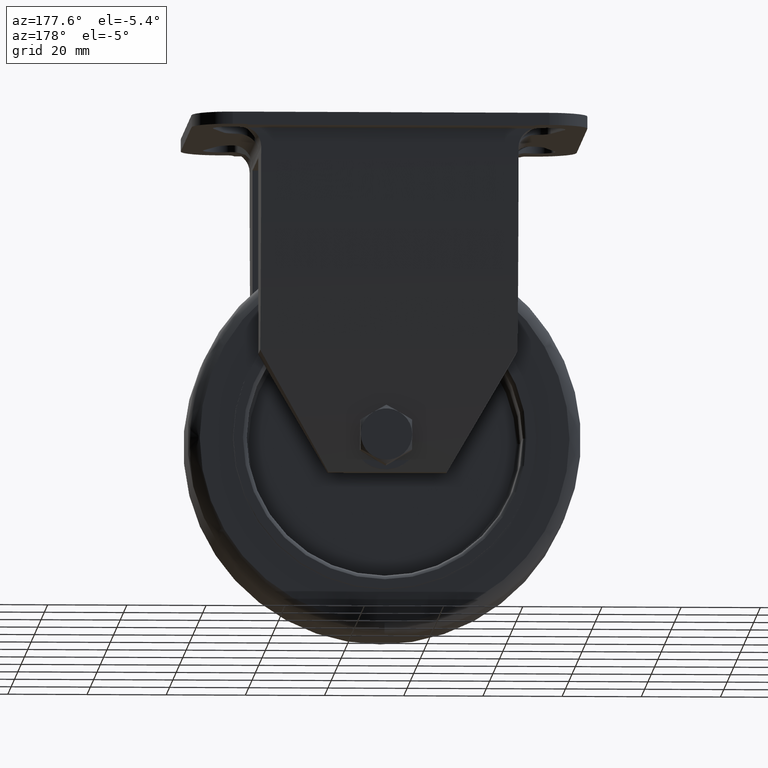
[diagram: clean part render]
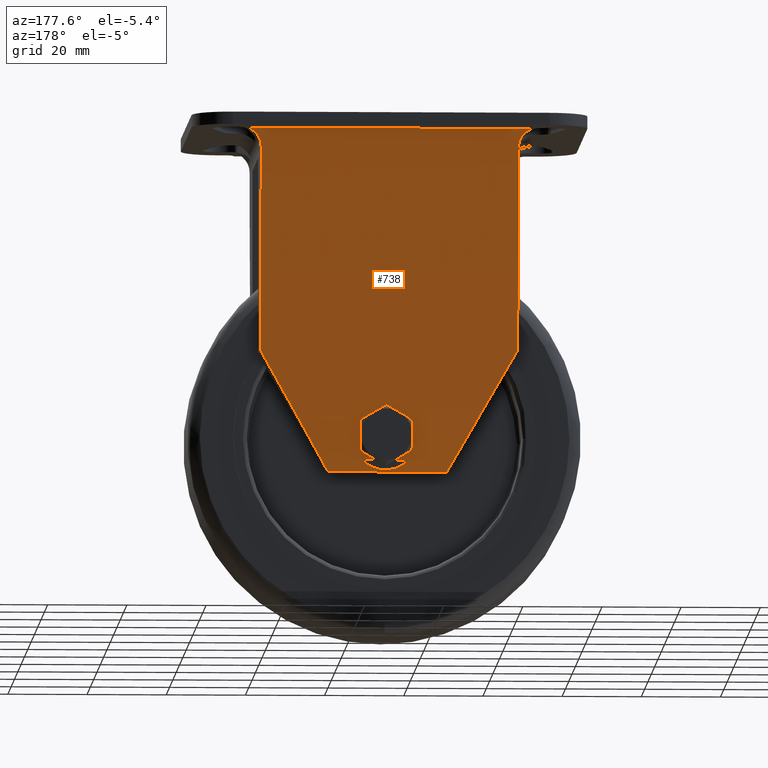
[diagram: same view with one face highlighted and labeled with its STEP entity id]
A machine part, auxiliary view. The second image highlights one B-rep face of the part: STEP entity #738.
In plain terms, the highlighted cylindrical surface (partial cylindrical patch) has radius 237.683 mm, axis along (-1, 0, 0).
Its self-contained STEP definition (entity closure, byte-faithful):
#17=CARTESIAN_POINT('',(-34.999999999854481,20.132727351359499,-89.074899551505951));
#18=VERTEX_POINT('',#17);
#25=CARTESIAN_POINT('',(-17.499999999927240,29.081470484884729,-59.074899551626004));
#26=VERTEX_POINT('',#25);
#27=CARTESIAN_POINT('',(13.295914884722153,-202.663913110853170,-6.281902606507163));
#28=DIRECTION('',(-0.863778900898468,3.085320E-017,0.503871025524028));
#29=DIRECTION('',(0.503871025524028,5.289120E-017,0.863778900898468));
#30=AXIS2_PLACEMENT_3D('',#27,#28,#29);
#31=ELLIPSE('',#30,275.166029494833940,237.682610521643000);
#32=EDGE_CURVE('',#26,#18,#31,.T.);
#230=CARTESIAN_POINT('',(-13.983269592892611,34.999991274860776,-3.299974283886515));
#231=VERTEX_POINT('',#230);
#284=CARTESIAN_POINT('',(-17.499999999927240,35.011934434363553,-8.074899551827913));
#285=VERTEX_POINT('',#284);
#292=CARTESIAN_POINT('',(-13.983269592892611,34.999991274860776,-3.299974283886515));
#293=CARTESIAN_POINT('',(-14.145652950079239,35.000624165982479,-3.350416601327199));
#294=CARTESIAN_POINT('',(-14.569965869013686,35.002539014016634,-3.506385639458133));
#295=CARTESIAN_POINT('',(-15.552061191752728,35.008388060178639,-4.026851848693697));
#296=CARTESIAN_POINT('',(-16.692195879615610,35.017709493622590,-5.129654845700317));
#297=CARTESIAN_POINT('',(-17.381654403310677,35.019980560630358,-6.675604846294847));
#298=CARTESIAN_POINT('',(-17.499999999927240,35.014871195865389,-7.685608716276876));
#299=CARTESIAN_POINT('',(-17.499999999927240,35.011934434363567,-8.074899551827913));
#300=B_SPLINE_CURVE_WITH_KNOTS('',3,(#292,#293,#294,#295,#296,#297,#298,#299),.UNSPECIFIED.,.F.,.U.,(4,1,1,1,1,4),(0.0,0.510323963921930,1.354049146166200,3.322794412383634,5.177447714325837,6.348012351777950),.UNSPECIFIED.);
#301=EDGE_CURVE('',#231,#285,#300,.T.);
#407=CARTESIAN_POINT('',(-86.016730406699935,34.999991274860776,-3.299974283886515));
#408=VERTEX_POINT('',#407);
#415=CARTESIAN_POINT('',(-82.499999999665306,35.011934434363553,-8.074899551829732));
#416=VERTEX_POINT('',#415);
#417=CARTESIAN_POINT('',(-82.499999999665306,35.011934434363553,-8.074899551828823));
#418=CARTESIAN_POINT('',(-82.499999999665306,35.014871195865396,-7.685608716275057));
#419=CARTESIAN_POINT('',(-82.618345596267318,35.019980560630401,-6.675604846289390));
#420=CARTESIAN_POINT('',(-83.307804119991488,35.017709493622547,-5.129654845697589));
#421=CARTESIAN_POINT('',(-84.447938807817991,35.008388060178632,-4.026851848692788));
#422=CARTESIAN_POINT('',(-85.430034130578861,35.002539014016634,-3.506385639459952));
#423=CARTESIAN_POINT('',(-85.854347049513308,35.000624165982479,-3.350416601327199));
#424=CARTESIAN_POINT('',(-86.016730406699935,34.999991274860776,-3.299974283886515));
#425=B_SPLINE_CURVE_WITH_KNOTS('',3,(#417,#418,#419,#420,#421,#422,#423,#424),.UNSPECIFIED.,.F.,.U.,(4,1,1,1,1,4),(0.0,1.170564637460456,3.025217939405751,4.993963205613918,5.837688387858207,6.348012351780159),.UNSPECIFIED.);
#426=EDGE_CURVE('',#416,#408,#425,.T.);
#535=CARTESIAN_POINT('',(-64.999999999738066,20.132727351359499,-89.074899551505951));
#536=VERTEX_POINT('',#535);
#553=CARTESIAN_POINT('',(-82.499999999665306,29.081470484884729,-59.074899551626004));
#554=VERTEX_POINT('',#553);
#561=CARTESIAN_POINT('',(-113.295914884314700,-202.663913110853170,-6.281902606507160));
#562=DIRECTION('',(0.863778900898468,3.085320E-017,0.503871025524028));
#563=DIRECTION('',(0.503871025524028,-5.289120E-017,-0.863778900898468));
#564=AXIS2_PLACEMENT_3D('',#561,#562,#563);
#565=ELLIPSE('',#564,275.166029494833940,237.682610521643000);
#566=EDGE_CURVE('',#536,#554,#565,.T.);
#625=CARTESIAN_POINT('',(-34.999999999854481,20.132727351359499,-89.074899551505951));
#626=DIRECTION('',(-1.0,0.0,0.0));
#627=VECTOR('',#626,29.999999999883585);
#628=LINE('',#625,#627);
#629=EDGE_CURVE('',#18,#536,#628,.T.);
#706=CARTESIAN_POINT('',(-127.499999999927240,-202.663913110853170,-6.281902606507162));
#707=DIRECTION('',(-1.0,0.0,0.0));
#708=DIRECTION('',(0.0,0.999921297835429,0.012545841347317));
#709=AXIS2_PLACEMENT_3D('',#706,#707,#708);
#710=CYLINDRICAL_SURFACE('',#709,237.682610521643000);
#711=CARTESIAN_POINT('',(-86.016730406697775,34.999991274860776,-3.299974283886515));
#712=DIRECTION('',(1.0,0.0,0.0));
#713=VECTOR('',#712,72.033460813803245);
#714=LINE('',#711,#713);
#715=EDGE_CURVE('',#408,#231,#714,.T.);
#716=ORIENTED_EDGE('',*,*,#715,.T.);
#717=ORIENTED_EDGE('',*,*,#301,.T.);
#718=CARTESIAN_POINT('',(-17.499999999927240,-202.663913110853170,-6.281902606507174));
#719=DIRECTION('',(-1.0,0.0,0.0));
#720=DIRECTION('',(0.0,0.872165457772618,-0.489211012006353));
#721=AXIS2_PLACEMENT_3D('',#718,#719,#720);
#722=CIRCLE('',#721,237.682610521643000);
#723=EDGE_CURVE('',#285,#26,#722,.T.);
#724=ORIENTED_EDGE('',*,*,#723,.T.);
#725=ORIENTED_EDGE('',*,*,#32,.T.);
#726=ORIENTED_EDGE('',*,*,#629,.T.);
#727=ORIENTED_EDGE('',*,*,#566,.T.);
#728=CARTESIAN_POINT('',(-82.499999999665306,-202.663913110853170,-6.281902606507174));
#729=DIRECTION('',(1.0,0.0,0.0));
#730=DIRECTION('',(0.0,0.872165457772618,-0.489211012006353));
#731=AXIS2_PLACEMENT_3D('',#728,#729,#730);
#732=CIRCLE('',#731,237.682610521643000);
#733=EDGE_CURVE('',#554,#416,#732,.T.);
#734=ORIENTED_EDGE('',*,*,#733,.T.);
#735=ORIENTED_EDGE('',*,*,#426,.T.);
#736=EDGE_LOOP('',(#716,#717,#724,#725,#726,#727,#734,#735));
#737=FACE_OUTER_BOUND('',#736,.T.);
#738=ADVANCED_FACE('',(#737),#710,.T.);